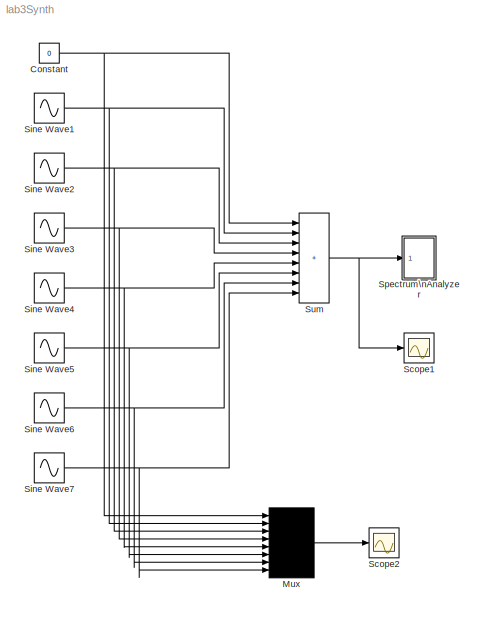
MODEL lab3Synth
KIND model
BLOCK [Constant] Constant
  SID = 1
  Value = 0
BLOCK [Mux] Mux
  Inputs = 8
  Ports = [8, 1]
  SID = 2
BLOCK [Scope] Scope1
  Floating = off
  NumInputPorts = 1
  Ports = [1]
  SID = 3
  ScopeSpecificationString = Simulink.scopes.TimeScopeBlockCfg('CurrentConfiguration', extmgr.ConfigurationSet(extmgr.Configuration('Core','General UI',true),extmgr.Configuration('Core','Source UI',true),extmgr.Configuration('Sources','WiredSimulink',true,'DataLoggingLimitDataPoints',true,'DataLoggingDecimation','1','DataLoggingDecimateData',true,'DataLoggingSaveFormat','Array'),extmgr.Configuration('Visuals','Time Domain',tr...<+1672ch>
BLOCK [Scope] Scope2
  Floating = off
  NumInputPorts = 1
  Ports = [1]
  SID = 4
  ScopeSpecificationString = Simulink.scopes.TimeScopeBlockCfg('CurrentConfiguration', extmgr.ConfigurationSet(extmgr.Configuration('Core','General UI',true),extmgr.Configuration('Core','Source UI',true),extmgr.Configuration('Sources','WiredSimulink',true,'DataLoggingLimitDataPoints',true,'DataLoggingDecimation','1','DataLoggingDecimateData',true,'DataLoggingSaveFormat','Array'),extmgr.Configuration('Visuals','Time Domain',tr...<+1672ch>
BLOCK [Sin] Sine Wave1
  Amplitude = 2/pi
  Frequency = 2*pi
  Phase = pi/2
  Ports = [0, 1]
  SID = 5
  SampleTime = 0
BLOCK [Sin] Sine Wave2
  Amplitude = -2/(3*pi)
  Frequency = 6*pi
  Phase = pi/2
  Ports = [0, 1]
  SID = 6
  SampleTime = 0
BLOCK [Sin] Sine Wave3
  Amplitude = 2/(5*pi)
  Frequency = 10*pi
  Phase = pi/2
  Ports = [0, 1]
  SID = 7
  SampleTime = 0
BLOCK [Sin] Sine Wave4
  Amplitude = -2/(7*pi)
  Frequency = 14*pi
  Phase = pi/2
  Ports = [0, 1]
  SID = 8
  SampleTime = 0
BLOCK [Sin] Sine Wave5
  Amplitude = 2/(9*pi)
  Frequency = 18*pi
  Phase = pi/2
  Ports = [0, 1]
  SID = 9
  SampleTime = 0
BLOCK [Sin] Sine Wave6
  Amplitude = -2/(11*pi)
  Frequency = 22*pi
  Phase = pi/2
  Ports = [0, 1]
  SID = 10
  SampleTime = 0
BLOCK [Sin] Sine Wave7
  Amplitude = 2/(13*pi)
  Frequency = 26*pi
  Phase = pi/2
  Ports = [0, 1]
  SID = 11
  SampleTime = 0
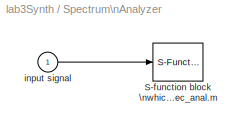
BLOCK [SubSystem] Spectrum\nAnalyzer
  Ports = [1]
  RequestExecContextInheritance = off
  SID = 12
  ShowPortLabels = none
BLOCK [S-Function] Spectrum\nAnalyzer/S-function block \nwhich spec_anal.m
  EnableBusSupport = off
  FunctionName = SpecAnal
  Parameters = N,T_s,plot_period
  Ports = [1]
  SFcnIsStateOwnerBlock = off
  SFunctionDeploymentMode = off
  SID = 14
BLOCK [Inport] Spectrum\nAnalyzer/input signal
  SID = 13
BLOCK [Sum] Sum
  IconShape = rectangular
  InputSameDT = on
  Inputs = ++++++++
  OutDataTypeStr = Inherit: Same as first input
  Ports = [8, 1]
  SID = 15
  SaturateOnIntegerOverflow = on
NET Constant:1 -> Mux:1, Sum:1
LINE Mux:1 -> Scope2:1
NET Sine Wave1:1 -> Mux:2, Sum:2
NET Sine Wave2:1 -> Mux:3, Sum:3
NET Sine Wave3:1 -> Mux:4, Sum:4
NET Sine Wave4:1 -> Mux:5, Sum:5
NET Sine Wave5:1 -> Mux:6, Sum:6
NET Sine Wave6:1 -> Mux:7, Sum:7
NET Sine Wave7:1 -> Mux:8, Sum:8
LINE Spectrum\nAnalyzer/input signal:1 -> Spectrum\nAnalyzer/S-function block \nwhich spec_anal.m:1
NET Sum:1 -> Scope1:1, Spectrum\nAnalyzer:1
note: NET lines group one-source signal fan-out (src -> all destinations, sorted); 1:1 wires keep LINE
